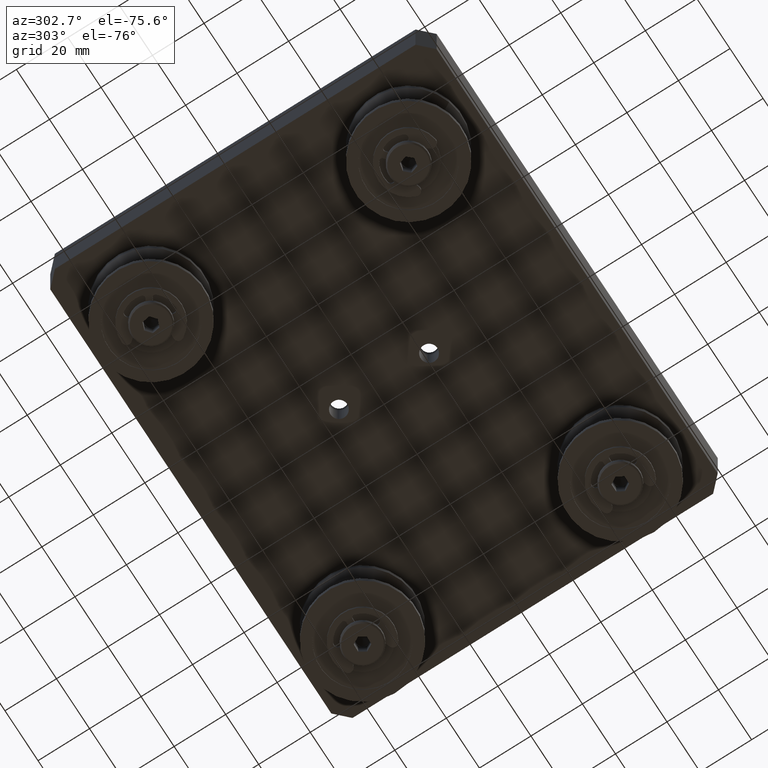
[diagram: clean part render]
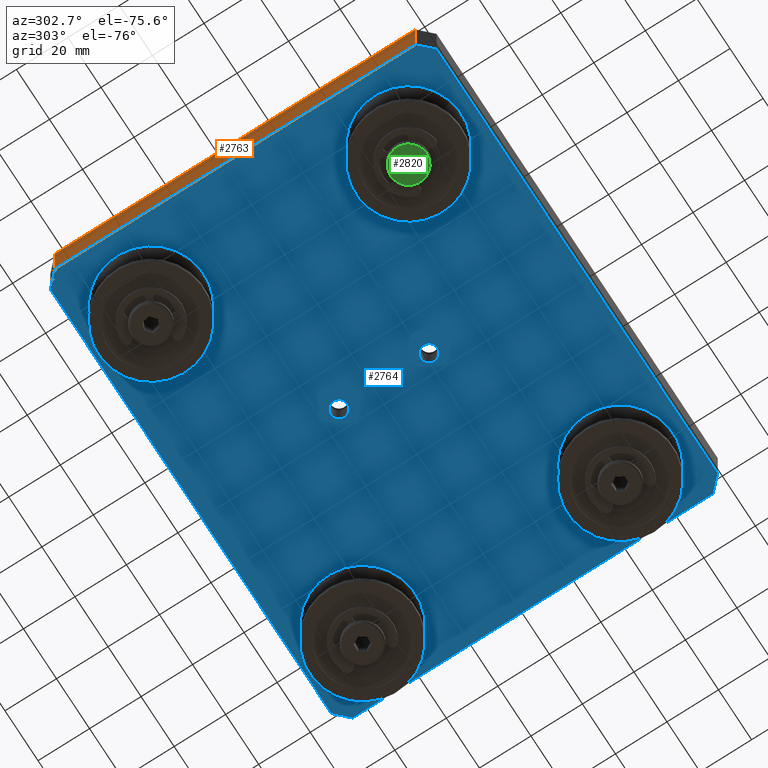
[diagram: same view with three faces highlighted in distinct colors, each labeled with its STEP entity id]
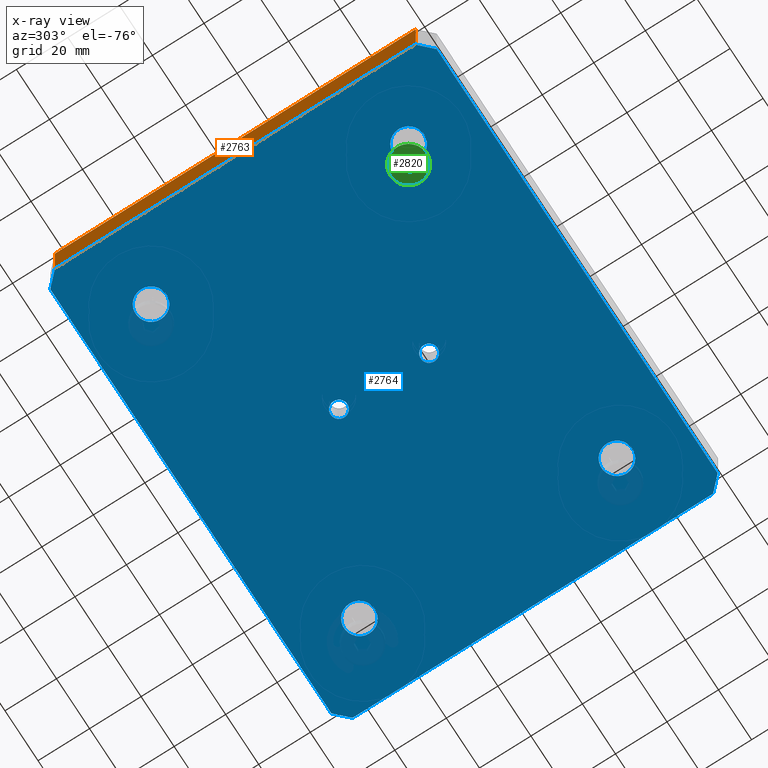
[diagram: x-ray of the same camera — body ghosted, the three highlighted faces saturated]
A machine part, auxiliary view with three faces highlighted in distinct colors.
The next image is the same camera in x-ray (body ghosted, the three faces saturated) — at least one of them is partly hidden behind the body in this view.
Their STEP definitions:

[orange] entity #2763 — the highlighted planar face has unit normal (-1, 0, 0).
#424=FACE_OUTER_BOUND('',#605,.T.);
#605=EDGE_LOOP('',(#1888,#1889,#1890,#1891));
#828=LINE('',#4451,#1041);
#829=LINE('',#4454,#1042);
#830=LINE('',#4456,#1043);
#831=LINE('',#4457,#1044);
#1041=VECTOR('',#3521,10.);
#1042=VECTOR('',#3524,10.);
#1043=VECTOR('',#3525,10.);
#1044=VECTOR('',#3526,10.);
#1251=VERTEX_POINT('',#4444);
#1254=VERTEX_POINT('',#4449);
#1255=VERTEX_POINT('',#4453);
#1256=VERTEX_POINT('',#4455);
#1498=EDGE_CURVE('',#1254,#1251,#828,.T.);
#1499=EDGE_CURVE('',#1255,#1254,#829,.T.);
#1500=EDGE_CURVE('',#1256,#1255,#830,.T.);
#1501=EDGE_CURVE('',#1256,#1251,#831,.T.);
#1888=ORIENTED_EDGE('',*,*,#1498,.F.);
#1889=ORIENTED_EDGE('',*,*,#1499,.F.);
#1890=ORIENTED_EDGE('',*,*,#1500,.F.);
#1891=ORIENTED_EDGE('',*,*,#1501,.T.);
#2663=PLANE('',#3157);
#2763=ADVANCED_FACE('',(#424),#2663,.T.);
#3157=AXIS2_PLACEMENT_3D('',#4452,#3522,#3523);
#3521=DIRECTION('',(0.,0.,1.));
#3522=DIRECTION('center_axis',(-1.,0.,0.));
#3523=DIRECTION('ref_axis',(0.,0.,1.));
#3524=DIRECTION('',(0.,1.,0.));
#3525=DIRECTION('',(0.,0.,-1.));
#3526=DIRECTION('',(0.,1.,0.));
#4444=CARTESIAN_POINT('',(-90.,70.,20.));
#4449=CARTESIAN_POINT('',(-90.,70.,0.));
#4451=CARTESIAN_POINT('',(-90.,70.,0.));
#4452=CARTESIAN_POINT('Origin',(-90.,-75.,0.));
#4453=CARTESIAN_POINT('',(-90.,-70.,0.));
#4454=CARTESIAN_POINT('',(-90.,-75.,0.));
#4455=CARTESIAN_POINT('',(-90.,-70.,20.));
#4456=CARTESIAN_POINT('',(-90.,-70.,0.));
#4457=CARTESIAN_POINT('',(-90.,-75.,20.));

[blue] entity #2764 — the highlighted planar face has unit normal (0, 0, 1).
#231=FACE_BOUND('',#607,.T.);
#232=FACE_BOUND('',#608,.T.);
#233=FACE_BOUND('',#609,.T.);
#234=FACE_BOUND('',#610,.T.);
#235=FACE_BOUND('',#611,.T.);
#236=FACE_BOUND('',#612,.T.);
#271=CIRCLE('',#3159,3.25);
#272=CIRCLE('',#3160,3.25);
#273=CIRCLE('',#3161,6.);
#274=CIRCLE('',#3162,6.);
#275=CIRCLE('',#3163,6.);
#276=CIRCLE('',#3164,6.);
#425=FACE_OUTER_BOUND('',#606,.T.);
#606=EDGE_LOOP('',(#1892,#1893,#1894,#1895,#1896,#1897,#1898,#1899));
#607=EDGE_LOOP('',(#1900));
#608=EDGE_LOOP('',(#1901));
#609=EDGE_LOOP('',(#1902));
#610=EDGE_LOOP('',(#1903));
#611=EDGE_LOOP('',(#1904));
#612=EDGE_LOOP('',(#1905));
#827=LINE('',#4450,#1040);
#829=LINE('',#4454,#1042);
#832=LINE('',#4460,#1045);
#833=LINE('',#4462,#1046);
#834=LINE('',#4464,#1047);
#835=LINE('',#4466,#1048);
#836=LINE('',#4468,#1049);
#837=LINE('',#4469,#1050);
#1040=VECTOR('',#3520,10.);
#1042=VECTOR('',#3524,10.);
#1045=VECTOR('',#3529,10.);
#1046=VECTOR('',#3530,10.);
#1047=VECTOR('',#3531,10.);
#1048=VECTOR('',#3532,10.);
#1049=VECTOR('',#3533,10.);
#1050=VECTOR('',#3534,10.);
#1253=VERTEX_POINT('',#4447);
#1254=VERTEX_POINT('',#4449);
#1255=VERTEX_POINT('',#4453);
#1257=VERTEX_POINT('',#4459);
#1258=VERTEX_POINT('',#4461);
#1259=VERTEX_POINT('',#4463);
#1260=VERTEX_POINT('',#4465);
#1261=VERTEX_POINT('',#4467);
#1262=VERTEX_POINT('',#4470);
#1263=VERTEX_POINT('',#4472);
#1264=VERTEX_POINT('',#4474);
#1265=VERTEX_POINT('',#4476);
#1266=VERTEX_POINT('',#4478);
#1267=VERTEX_POINT('',#4480);
#1497=EDGE_CURVE('',#1253,#1254,#827,.T.);
#1499=EDGE_CURVE('',#1255,#1254,#829,.T.);
#1502=EDGE_CURVE('',#1253,#1257,#832,.T.);
#1503=EDGE_CURVE('',#1258,#1257,#833,.T.);
#1504=EDGE_CURVE('',#1258,#1259,#834,.T.);
#1505=EDGE_CURVE('',#1260,#1259,#835,.T.);
#1506=EDGE_CURVE('',#1260,#1261,#836,.T.);
#1507=EDGE_CURVE('',#1255,#1261,#837,.T.);
#1508=EDGE_CURVE('',#1262,#1262,#271,.T.);
#1509=EDGE_CURVE('',#1263,#1263,#272,.T.);
#1510=EDGE_CURVE('',#1264,#1264,#273,.T.);
#1511=EDGE_CURVE('',#1265,#1265,#274,.T.);
#1512=EDGE_CURVE('',#1266,#1266,#275,.T.);
#1513=EDGE_CURVE('',#1267,#1267,#276,.T.);
#1892=ORIENTED_EDGE('',*,*,#1497,.F.);
#1893=ORIENTED_EDGE('',*,*,#1502,.T.);
#1894=ORIENTED_EDGE('',*,*,#1503,.F.);
#1895=ORIENTED_EDGE('',*,*,#1504,.T.);
#1896=ORIENTED_EDGE('',*,*,#1505,.F.);
#1897=ORIENTED_EDGE('',*,*,#1506,.T.);
#1898=ORIENTED_EDGE('',*,*,#1507,.F.);
#1899=ORIENTED_EDGE('',*,*,#1499,.T.);
#1900=ORIENTED_EDGE('',*,*,#1508,.T.);
#1901=ORIENTED_EDGE('',*,*,#1509,.T.);
#1902=ORIENTED_EDGE('',*,*,#1510,.T.);
#1903=ORIENTED_EDGE('',*,*,#1511,.T.);
#1904=ORIENTED_EDGE('',*,*,#1512,.T.);
#1905=ORIENTED_EDGE('',*,*,#1513,.T.);
#2664=PLANE('',#3158);
#2764=ADVANCED_FACE('',(#425,#231,#232,#233,#234,#235,#236),#2664,.F.);
#3158=AXIS2_PLACEMENT_3D('',#4458,#3527,#3528);
#3159=AXIS2_PLACEMENT_3D('',#4471,#3535,#3536);
#3160=AXIS2_PLACEMENT_3D('',#4473,#3537,#3538);
#3161=AXIS2_PLACEMENT_3D('',#4475,#3539,#3540);
#3162=AXIS2_PLACEMENT_3D('',#4477,#3541,#3542);
#3163=AXIS2_PLACEMENT_3D('',#4479,#3543,#3544);
#3164=AXIS2_PLACEMENT_3D('',#4481,#3545,#3546);
#3520=DIRECTION('',(-0.707106781186548,-0.707106781186548,0.));
#3524=DIRECTION('',(0.,1.,0.));
#3527=DIRECTION('center_axis',(0.,0.,1.));
#3528=DIRECTION('ref_axis',(1.,0.,0.));
#3529=DIRECTION('',(1.,0.,0.));
#3530=DIRECTION('',(-0.707106781186548,0.707106781186548,0.));
#3531=DIRECTION('',(0.,-1.,0.));
#3532=DIRECTION('',(0.707106781186548,0.707106781186548,0.));
#3533=DIRECTION('',(-1.,0.,0.));
#3534=DIRECTION('',(0.707106781186548,-0.707106781186548,0.));
#3535=DIRECTION('center_axis',(0.,0.,1.));
#3536=DIRECTION('ref_axis',(1.,0.,0.));
#3537=DIRECTION('center_axis',(0.,0.,1.));
#3538=DIRECTION('ref_axis',(1.,0.,0.));
#3539=DIRECTION('center_axis',(0.,0.,1.));
#3540=DIRECTION('ref_axis',(1.,0.,0.));
#3541=DIRECTION('center_axis',(0.,0.,1.));
#3542=DIRECTION('ref_axis',(1.,0.,0.));
#3543=DIRECTION('center_axis',(0.,0.,1.));
#3544=DIRECTION('ref_axis',(1.,0.,0.));
#3545=DIRECTION('center_axis',(0.,0.,1.));
#3546=DIRECTION('ref_axis',(1.,0.,0.));
#4447=CARTESIAN_POINT('',(-85.,75.,0.));
#4449=CARTESIAN_POINT('',(-90.,70.,0.));
#4450=CARTESIAN_POINT('',(-83.75,76.25,0.));
#4453=CARTESIAN_POINT('',(-90.,-70.,0.));
#4454=CARTESIAN_POINT('',(-90.,-75.,0.));
#4458=CARTESIAN_POINT('Origin',(0.,0.,0.));
#4459=CARTESIAN_POINT('',(85.,75.,0.));
#4460=CARTESIAN_POINT('',(-90.,75.,0.));
#4461=CARTESIAN_POINT('',(90.,70.,0.));
#4462=CARTESIAN_POINT('',(83.75,76.25,0.));
#4463=CARTESIAN_POINT('',(90.,-70.,0.));
#4464=CARTESIAN_POINT('',(90.,75.,0.));
#4465=CARTESIAN_POINT('',(85.,-75.,0.));
#4466=CARTESIAN_POINT('',(83.75,-76.25,0.));
#4467=CARTESIAN_POINT('',(-85.,-75.,0.));
#4468=CARTESIAN_POINT('',(90.,-75.,0.));
#4469=CARTESIAN_POINT('',(-83.75,-76.25,0.));
#4470=CARTESIAN_POINT('',(-3.25,17.5,0.));
#4471=CARTESIAN_POINT('Origin',(0.,17.5,0.));
#4472=CARTESIAN_POINT('',(-3.25,-17.5,0.));
#4473=CARTESIAN_POINT('Origin',(0.,-17.5,0.));
#4474=CARTESIAN_POINT('',(57.,-50.,0.));
#4475=CARTESIAN_POINT('Origin',(63.,-50.,0.));
#4476=CARTESIAN_POINT('',(57.,50.,0.));
#4477=CARTESIAN_POINT('Origin',(63.,50.,0.));
#4478=CARTESIAN_POINT('',(-69.,50.,0.));
#4479=CARTESIAN_POINT('Origin',(-63.,50.,0.));
#4480=CARTESIAN_POINT('',(-69.,-50.,0.));
#4481=CARTESIAN_POINT('Origin',(-63.,-50.,0.));

[green] entity #2820 — the highlighted planar face has unit normal (0, 0, -1).
#249=FACE_BOUND('',#681,.T.);
#309=CIRCLE('',#3253,7.);
#481=FACE_OUTER_BOUND('',#680,.T.);
#680=EDGE_LOOP('',(#2134));
#681=EDGE_LOOP('',(#2135,#2136,#2137,#2138,#2139,#2140));
#876=LINE('',#4620,#1089);
#878=LINE('',#4624,#1091);
#880=LINE('',#4628,#1093);
#882=LINE('',#4632,#1095);
#884=LINE('',#4636,#1097);
#886=LINE('',#4639,#1099);
#1089=VECTOR('',#3707,10.);
#1091=VECTOR('',#3711,10.);
#1093=VECTOR('',#3715,10.);
#1095=VECTOR('',#3719,10.);
#1097=VECTOR('',#3723,10.);
#1099=VECTOR('',#3727,10.);
#1305=VERTEX_POINT('',#4617);
#1306=VERTEX_POINT('',#4619);
#1307=VERTEX_POINT('',#4623);
#1308=VERTEX_POINT('',#4627);
#1309=VERTEX_POINT('',#4631);
#1310=VERTEX_POINT('',#4635);
#1331=VERTEX_POINT('',#4708);
#1577=EDGE_CURVE('',#1306,#1305,#876,.T.);
#1579=EDGE_CURVE('',#1307,#1306,#878,.T.);
#1581=EDGE_CURVE('',#1308,#1307,#880,.T.);
#1583=EDGE_CURVE('',#1309,#1308,#882,.T.);
#1585=EDGE_CURVE('',#1310,#1309,#884,.T.);
#1587=EDGE_CURVE('',#1305,#1310,#886,.T.);
#1621=EDGE_CURVE('',#1331,#1331,#309,.T.);
#2134=ORIENTED_EDGE('',*,*,#1621,.F.);
#2135=ORIENTED_EDGE('',*,*,#1577,.T.);
#2136=ORIENTED_EDGE('',*,*,#1587,.T.);
#2137=ORIENTED_EDGE('',*,*,#1585,.T.);
#2138=ORIENTED_EDGE('',*,*,#1583,.T.);
#2139=ORIENTED_EDGE('',*,*,#1581,.T.);
#2140=ORIENTED_EDGE('',*,*,#1579,.T.);
#2702=PLANE('',#3258);
#2820=ADVANCED_FACE('',(#481,#249),#2702,.T.);
#3253=AXIS2_PLACEMENT_3D('',#4709,#3798,#3799);
#3258=AXIS2_PLACEMENT_3D('',#4719,#3810,#3811);
#3707=DIRECTION('',(0.,-1.,9.61481343191782E-17));
#3711=DIRECTION('',(0.,-0.5,-0.866025403784439));
#3715=DIRECTION('',(0.,0.5,-0.866025403784438));
#3719=DIRECTION('',(0.,1.,1.92296268638356E-16));
#3723=DIRECTION('',(0.,0.5,0.866025403784439));
#3727=DIRECTION('',(0.,-0.5,0.866025403784439));
#3798=DIRECTION('center_axis',(-1.,0.,0.));
#3799=DIRECTION('ref_axis',(0.,-1.,0.));
#3810=DIRECTION('center_axis',(1.,0.,0.));
#3811=DIRECTION('ref_axis',(0.,0.,-1.));
#4617=CARTESIAN_POINT('',(27.,-1.44337567297406,-2.49999999999999));
#4619=CARTESIAN_POINT('',(27.,1.44337567297406,-2.49999999999999));
#4620=CARTESIAN_POINT('',(27.,1.15331216351297,-2.49999999999999));
#4623=CARTESIAN_POINT('',(27.,2.88675134594813,6.27488026195578E-15));
#4624=CARTESIAN_POINT('',(27.,2.27296959121758,-1.06310118395209));
#4627=CARTESIAN_POINT('',(27.,1.44337567297406,2.5));
#4628=CARTESIAN_POINT('',(27.,2.99465742770461,-0.186898816047908));
#4631=CARTESIAN_POINT('',(27.,-1.44337567297406,2.5));
#4632=CARTESIAN_POINT('',(27.,2.59668783648703,2.50000000000001));
#4635=CARTESIAN_POINT('',(27.,-2.88675134594813,4.86687601468272E-15));
#4636=CARTESIAN_POINT('',(27.,-1.33546959121758,2.68689881604791));
#4639=CARTESIAN_POINT('',(27.,-2.05715742770461,-1.43689881604791));
#4708=CARTESIAN_POINT('',(27.,7.,-8.57252759403147E-16));
#4709=CARTESIAN_POINT('Origin',(27.,0.,0.));
#4719=CARTESIAN_POINT('Origin',(27.,3.75,0.));